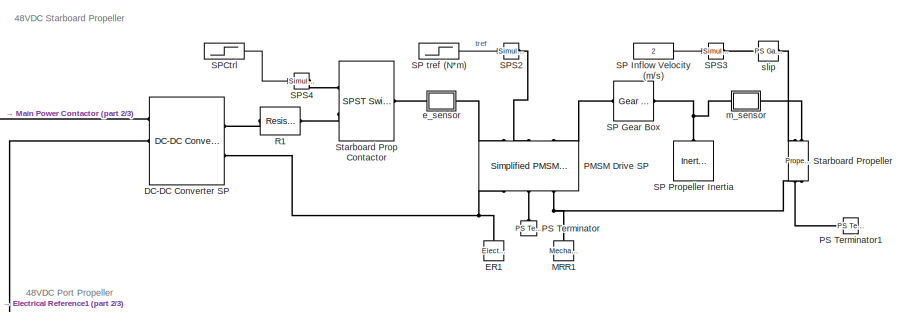
[diagram: root canvas - part 1/3, top right region]
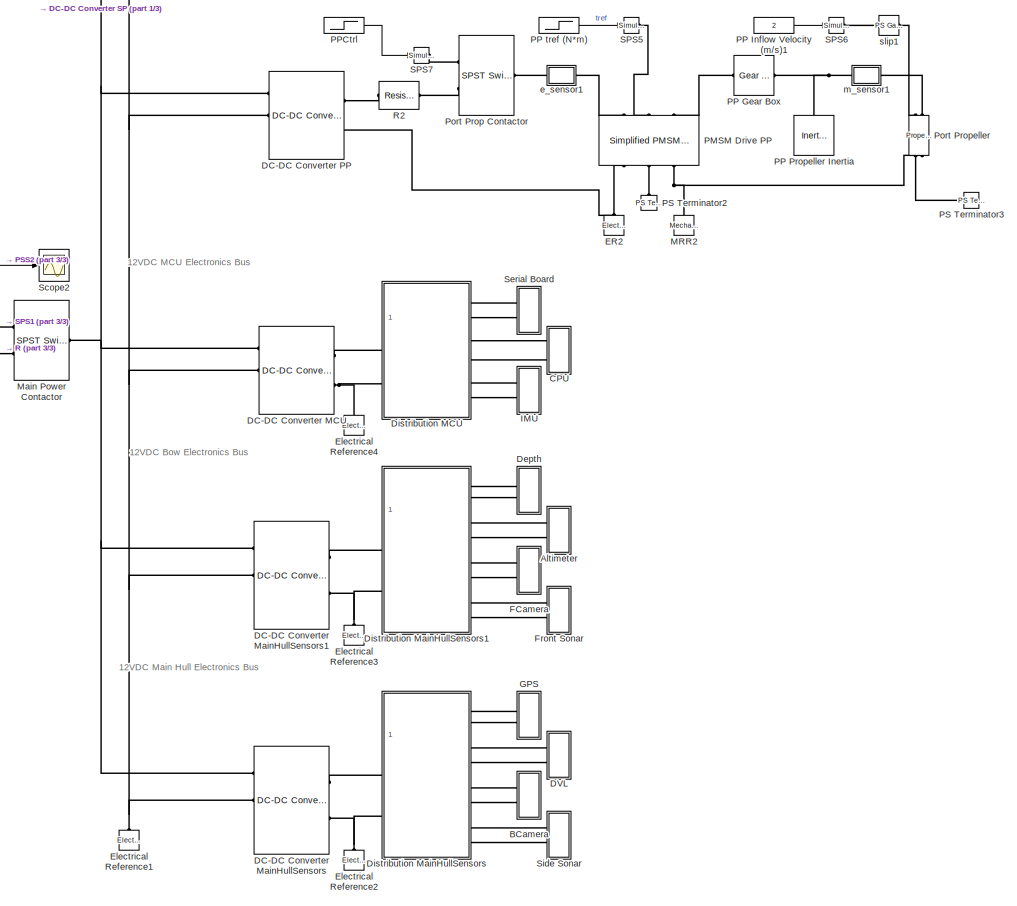
[diagram: root canvas - part 2/3, right side, full height]
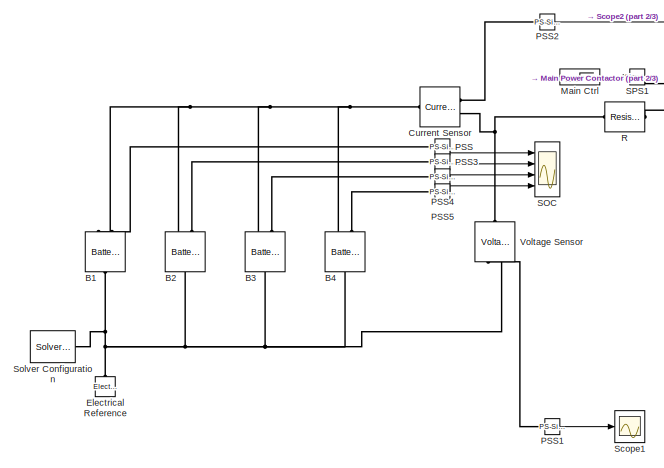
[diagram: root canvas - part 3/3, middle left region]
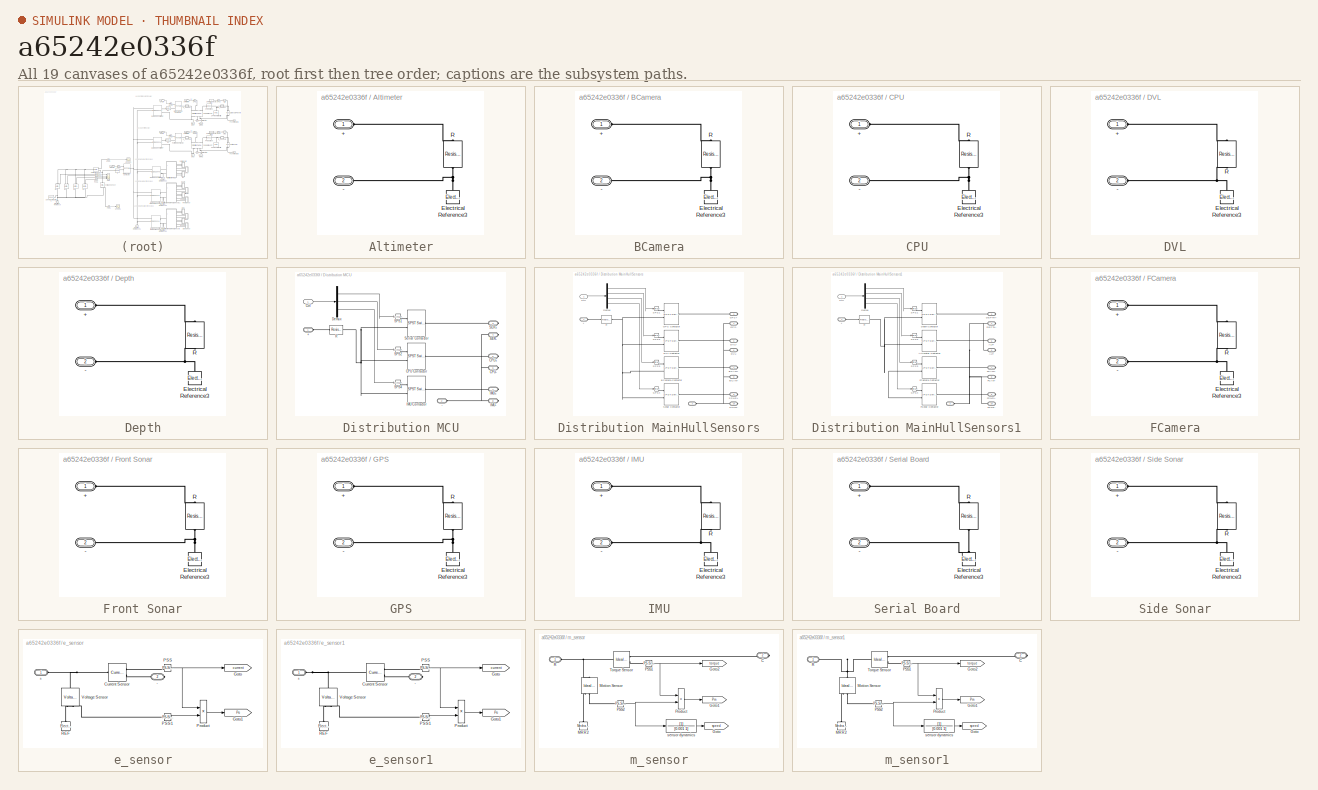
[diagram: thumbnail index - all 19 canvases of the model, root first then tree order]
MODEL slx_a65242e0336f
KIND model
CONFIG AbsTol = 1e-3
CONFIG EnableMultiTasking = off
CONFIG FixedStep = auto
CONFIG MaxStep = auto
CONFIG MinStep = auto
CONFIG RelTol = 1e-3
CONFIG SampleTimeConstraint = Unconstrained
CONFIG Solver = VariableStepAuto
CONFIG SolverName = VariableStepAuto
CONFIG StartTime = 0.0
CONFIG StopTime = 3600
BLOCK [SubSystem] Altimeter
  NameLocation = right
  Ports = [0, 0, 0, 0, 0, 2]
  RequestExecContextInheritance = off
BLOCK [PMIOPort] Altimeter/+
  Side = Left
BLOCK [PMIOPort] Altimeter/-
  Port = 2
  Side = Left
BLOCK [Reference] Altimeter/Electrical Reference3  REF=fl_lib/Electrical/Electrical Elements/Electrical Reference
  NameLocation = right
  Ports = [0, 0, 0, 0, 0, 1]
  SourceBlock = fl_lib/Electrical/Electrical Elements/Electrical Reference
  SourceProductBaseCode = MT,SS
  SourceType = Electrical Reference
BLOCK [Reference] Altimeter/R  REF=ee_lib/Passive/Resistor
  NameLocation = left
  Ports = [0, 0, 0, 0, 0, 1, 1]
  SourceBlock = ee_lib/Passive/Resistor
  SourceProductBaseCode = PS
  SourceType = Resistor
BLOCK [Reference] B1  REF=ee_lib/Sources/Battery
  NameLocation = right
  Ports = [0, 0, 0, 0, 0, 2, 1]
  SourceBlock = ee_lib/Sources/Battery
  SourceProductBaseCode = PS
  SourceType = Battery
BLOCK [Reference] B2  REF=ee_lib/Sources/Battery
  NameLocation = right
  Ports = [0, 0, 0, 0, 0, 2, 1]
  SourceBlock = ee_lib/Sources/Battery
  SourceProductBaseCode = PS
  SourceType = Battery
BLOCK [Reference] B3  REF=ee_lib/Sources/Battery
  NameLocation = right
  Ports = [0, 0, 0, 0, 0, 2, 1]
  SourceBlock = ee_lib/Sources/Battery
  SourceProductBaseCode = PS
  SourceType = Battery
BLOCK [Reference] B4  REF=ee_lib/Sources/Battery
  NameLocation = right
  Ports = [0, 0, 0, 0, 0, 2, 1]
  SourceBlock = ee_lib/Sources/Battery
  SourceProductBaseCode = PS
  SourceType = Battery
BLOCK [SubSystem] BCamera
  NameLocation = right
  Ports = [0, 0, 0, 0, 0, 2]
  RequestExecContextInheritance = off
BLOCK [PMIOPort] BCamera/+
  Side = Left
BLOCK [PMIOPort] BCamera/-
  Port = 2
  Side = Left
BLOCK [Reference] BCamera/Electrical Reference3  REF=fl_lib/Electrical/Electrical Elements/Electrical Reference
  NameLocation = right
  Ports = [0, 0, 0, 0, 0, 1]
  SourceBlock = fl_lib/Electrical/Electrical Elements/Electrical Reference
  SourceProductBaseCode = MT,SS
  SourceType = Electrical Reference
BLOCK [Reference] BCamera/R  REF=ee_lib/Passive/Resistor
  NameLocation = left
  Ports = [0, 0, 0, 0, 0, 1, 1]
  SourceBlock = ee_lib/Passive/Resistor
  SourceProductBaseCode = PS
  SourceType = Resistor
BLOCK [SubSystem] CPU
  NameLocation = right
  Ports = [0, 0, 0, 0, 0, 2]
  RequestExecContextInheritance = off
BLOCK [PMIOPort] CPU/+
  Side = Left
BLOCK [PMIOPort] CPU/-
  Port = 2
  Side = Left
BLOCK [Reference] CPU/Electrical Reference3  REF=fl_lib/Electrical/Electrical Elements/Electrical Reference
  NameLocation = right
  Ports = [0, 0, 0, 0, 0, 1]
  SourceBlock = fl_lib/Electrical/Electrical Elements/Electrical Reference
  SourceProductBaseCode = MT,SS
  SourceType = Electrical Reference
BLOCK [Reference] CPU/R  REF=ee_lib/Passive/Resistor
  NameLocation = left
  Ports = [0, 0, 0, 0, 0, 1, 1]
  SourceBlock = ee_lib/Passive/Resistor
  SourceProductBaseCode = PS
  SourceType = Resistor
BLOCK [Reference] Current Sensor  REF=fl_lib/Electrical/Electrical Sensors/Current Sensor
  Ports = [0, 0, 0, 0, 0, 1, 2]
  SourceBlock = fl_lib/Electrical/Electrical Sensors/Current Sensor
  SourceProductBaseCode = SS
  SourceType = Current Sensor
BLOCK [Reference] DC-DC Converter MCU  REF=ee_lib/Semiconductors &
Converters/Converters/DC-DC Converter
  Ports = [0, 0, 0, 0, 0, 3, 2]
  SourceBlock = ee_lib/Semiconductors &\nConverters/Converters/DC-DC Converter
  SourceProductBaseCode = PS
  SourceType = DC-DC Converter
BLOCK [Reference] DC-DC Converter MainHullSensors  REF=ee_lib/Semiconductors &
Converters/Converters/DC-DC Converter
  Ports = [0, 0, 0, 0, 0, 3, 2]
  SourceBlock = ee_lib/Semiconductors &\nConverters/Converters/DC-DC Converter
  SourceProductBaseCode = PS
  SourceType = DC-DC Converter
BLOCK [Reference] DC-DC Converter MainHullSensors1  REF=ee_lib/Semiconductors &
Converters/Converters/DC-DC Converter
  Ports = [0, 0, 0, 0, 0, 3, 2]
  SourceBlock = ee_lib/Semiconductors &\nConverters/Converters/DC-DC Converter
  SourceProductBaseCode = PS
  SourceType = DC-DC Converter
BLOCK [Reference] DC-DC Converter PP  REF=ee_lib/Semiconductors &
Converters/Converters/DC-DC Converter
  Ports = [0, 0, 0, 0, 0, 3, 2]
  SourceBlock = ee_lib/Semiconductors &\nConverters/Converters/DC-DC Converter
  SourceProductBaseCode = PS
  SourceType = DC-DC Converter
BLOCK [Reference] DC-DC Converter SP  REF=ee_lib/Semiconductors &
Converters/Converters/DC-DC Converter
  Ports = [0, 0, 0, 0, 0, 3, 2]
  SourceBlock = ee_lib/Semiconductors &\nConverters/Converters/DC-DC Converter
  SourceProductBaseCode = PS
  SourceType = DC-DC Converter
BLOCK [SubSystem] DVL
  NameLocation = right
  Ports = [0, 0, 0, 0, 0, 2]
  RequestExecContextInheritance = off
BLOCK [PMIOPort] DVL/+
  Side = Left
BLOCK [PMIOPort] DVL/-
  Port = 2
  Side = Left
BLOCK [Reference] DVL/Electrical Reference3  REF=fl_lib/Electrical/Electrical Elements/Electrical Reference
  NameLocation = right
  Ports = [0, 0, 0, 0, 0, 1]
  SourceBlock = fl_lib/Electrical/Electrical Elements/Electrical Reference
  SourceProductBaseCode = MT,SS
  SourceType = Electrical Reference
BLOCK [Reference] DVL/R  REF=ee_lib/Passive/Resistor
  NameLocation = left
  Ports = [0, 0, 0, 0, 0, 1, 1]
  SourceBlock = ee_lib/Passive/Resistor
  SourceProductBaseCode = PS
  SourceType = Resistor
BLOCK [SubSystem] Depth
  NameLocation = right
  Ports = [0, 0, 0, 0, 0, 2]
  RequestExecContextInheritance = off
BLOCK [PMIOPort] Depth/+
  Side = Left
BLOCK [PMIOPort] Depth/-
  Port = 2
  Side = Left
BLOCK [Reference] Depth/Electrical Reference3  REF=fl_lib/Electrical/Electrical Elements/Electrical Reference
  NameLocation = right
  Ports = [0, 0, 0, 0, 0, 1]
  SourceBlock = fl_lib/Electrical/Electrical Elements/Electrical Reference
  SourceProductBaseCode = MT,SS
  SourceType = Electrical Reference
BLOCK [Reference] Depth/R  REF=ee_lib/Passive/Resistor
  NameLocation = left
  Ports = [0, 0, 0, 0, 0, 1, 1]
  SourceBlock = ee_lib/Passive/Resistor
  SourceProductBaseCode = PS
  SourceType = Resistor
BLOCK [SubSystem] Distribution MCU
  Ports = [1, 0, 0, 0, 0, 2, 6]
  RequestExecContextInheritance = off
BLOCK [PMIOPort] Distribution MCU/+
  Side = Left
BLOCK [PMIOPort] Distribution MCU/-
  Port = 2
  Side = Left
BLOCK [Reference] Distribution MCU/CPU Contactor  REF=ee_lib/Switches & Breakers/SPST Switch
  Ports = [0, 0, 0, 0, 0, 2, 1]
  SourceBlock = ee_lib/Switches & Breakers/SPST Switch
  SourceProductBaseCode = PS
  SourceType = SPST Switch
BLOCK [PMIOPort] Distribution MCU/CPU+
  Port = 5
  Side = Right
BLOCK [PMIOPort] Distribution MCU/CPU-
  Port = 6
  Side = Right
BLOCK [Inport] Distribution MCU/Ctrl
BLOCK [Demux] Distribution MCU/Demux
  Outputs = 3
  Ports = [1, 3]
BLOCK [Reference] Distribution MCU/IMU Contactor  REF=ee_lib/Switches & Breakers/SPST Switch
  Ports = [0, 0, 0, 0, 0, 2, 1]
  SourceBlock = ee_lib/Switches & Breakers/SPST Switch
  SourceProductBaseCode = PS
  SourceType = SPST Switch
BLOCK [PMIOPort] Distribution MCU/IMU+
  Port = 7
  Side = Right
BLOCK [PMIOPort] Distribution MCU/IMU-
  Port = 8
  Side = Right
BLOCK [Reference] Distribution MCU/R  REF=ee_lib/Passive/Resistor
  Ports = [0, 0, 0, 0, 0, 1, 1]
  SourceBlock = ee_lib/Passive/Resistor
  SourceProductBaseCode = PS
  SourceType = Resistor
BLOCK [PMIOPort] Distribution MCU/SER+
  Port = 3
  Side = Right
BLOCK [PMIOPort] Distribution MCU/SER-
  Port = 4
  Side = Right
BLOCK [Reference] Distribution MCU/SPS1  REF=nesl_utility/Simulink-PS
Converter
  Ports = [1, 0, 0, 0, 0, 0, 1]
  SourceBlock = nesl_utility/Simulink-PS\nConverter
  SourceProductBaseCode = SS
  SourceType = Simulink-PS\nConverter
BLOCK [Reference] Distribution MCU/SPS2  REF=nesl_utility/Simulink-PS
Converter
  Ports = [1, 0, 0, 0, 0, 0, 1]
  SourceBlock = nesl_utility/Simulink-PS\nConverter
  SourceProductBaseCode = SS
  SourceType = Simulink-PS\nConverter
BLOCK [Reference] Distribution MCU/SPS4  REF=nesl_utility/Simulink-PS
Converter
  Ports = [1, 0, 0, 0, 0, 0, 1]
  SourceBlock = nesl_utility/Simulink-PS\nConverter
  SourceProductBaseCode = SS
  SourceType = Simulink-PS\nConverter
BLOCK [Reference] Distribution MCU/Serial Contactor  REF=ee_lib/Switches & Breakers/SPST Switch
  Ports = [0, 0, 0, 0, 0, 2, 1]
  SourceBlock = ee_lib/Switches & Breakers/SPST Switch
  SourceProductBaseCode = PS
  SourceType = SPST Switch
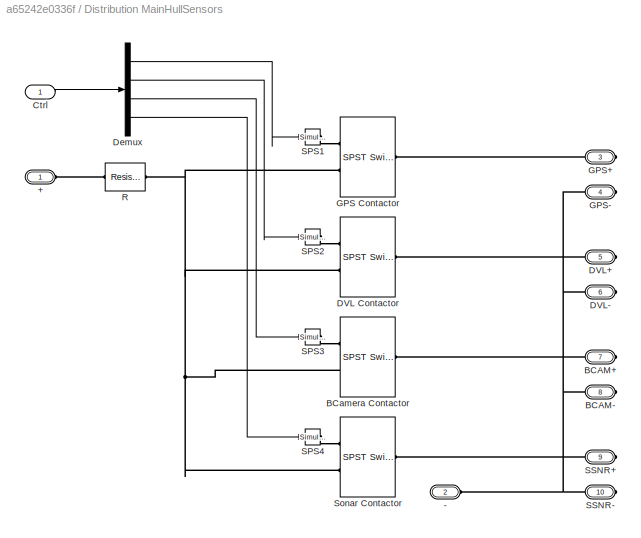
BLOCK [SubSystem] Distribution MainHullSensors
  Ports = [1, 0, 0, 0, 0, 2, 8]
  RequestExecContextInheritance = off
BLOCK [PMIOPort] Distribution MainHullSensors/+
  Side = Left
BLOCK [PMIOPort] Distribution MainHullSensors/-
  Port = 2
  Side = Left
BLOCK [PMIOPort] Distribution MainHullSensors/BCAM+
  Port = 7
  Side = Right
BLOCK [PMIOPort] Distribution MainHullSensors/BCAM-
  Port = 8
  Side = Right
BLOCK [Reference] Distribution MainHullSensors/BCamera Contactor  REF=ee_lib/Switches & Breakers/SPST Switch
  Ports = [0, 0, 0, 0, 0, 2, 1]
  SourceBlock = ee_lib/Switches & Breakers/SPST Switch
  SourceProductBaseCode = PS
  SourceType = SPST Switch
BLOCK [Inport] Distribution MainHullSensors/Ctrl
BLOCK [Reference] Distribution MainHullSensors/DVL Contactor  REF=ee_lib/Switches & Breakers/SPST Switch
  Ports = [0, 0, 0, 0, 0, 2, 1]
  SourceBlock = ee_lib/Switches & Breakers/SPST Switch
  SourceProductBaseCode = PS
  SourceType = SPST Switch
BLOCK [PMIOPort] Distribution MainHullSensors/DVL+
  Port = 5
  Side = Right
BLOCK [PMIOPort] Distribution MainHullSensors/DVL-
  Port = 6
  Side = Right
BLOCK [Demux] Distribution MainHullSensors/Demux
  Ports = [1, 4]
BLOCK [Reference] Distribution MainHullSensors/GPS Contactor  REF=ee_lib/Switches & Breakers/SPST Switch
  Ports = [0, 0, 0, 0, 0, 2, 1]
  SourceBlock = ee_lib/Switches & Breakers/SPST Switch
  SourceProductBaseCode = PS
  SourceType = SPST Switch
BLOCK [PMIOPort] Distribution MainHullSensors/GPS+
  Port = 3
  Side = Right
BLOCK [PMIOPort] Distribution MainHullSensors/GPS-
  Port = 4
  Side = Right
BLOCK [Reference] Distribution MainHullSensors/R  REF=ee_lib/Passive/Resistor
  Ports = [0, 0, 0, 0, 0, 1, 1]
  SourceBlock = ee_lib/Passive/Resistor
  SourceProductBaseCode = PS
  SourceType = Resistor
BLOCK [Reference] Distribution MainHullSensors/SPS1  REF=nesl_utility/Simulink-PS
Converter
  Ports = [1, 0, 0, 0, 0, 0, 1]
  SourceBlock = nesl_utility/Simulink-PS\nConverter
  SourceProductBaseCode = SS
  SourceType = Simulink-PS\nConverter
BLOCK [Reference] Distribution MainHullSensors/SPS2  REF=nesl_utility/Simulink-PS
Converter
  Ports = [1, 0, 0, 0, 0, 0, 1]
  SourceBlock = nesl_utility/Simulink-PS\nConverter
  SourceProductBaseCode = SS
  SourceType = Simulink-PS\nConverter
BLOCK [Reference] Distribution MainHullSensors/SPS3  REF=nesl_utility/Simulink-PS
Converter
  Ports = [1, 0, 0, 0, 0, 0, 1]
  SourceBlock = nesl_utility/Simulink-PS\nConverter
  SourceProductBaseCode = SS
  SourceType = Simulink-PS\nConverter
BLOCK [Reference] Distribution MainHullSensors/SPS4  REF=nesl_utility/Simulink-PS
Converter
  Ports = [1, 0, 0, 0, 0, 0, 1]
  SourceBlock = nesl_utility/Simulink-PS\nConverter
  SourceProductBaseCode = SS
  SourceType = Simulink-PS\nConverter
BLOCK [PMIOPort] Distribution MainHullSensors/SSNR+
  Port = 9
  Side = Right
BLOCK [PMIOPort] Distribution MainHullSensors/SSNR-
  Port = 10
  Side = Right
BLOCK [Reference] Distribution MainHullSensors/Sonar Contactor  REF=ee_lib/Switches & Breakers/SPST Switch
  Ports = [0, 0, 0, 0, 0, 2, 1]
  SourceBlock = ee_lib/Switches & Breakers/SPST Switch
  SourceProductBaseCode = PS
  SourceType = SPST Switch
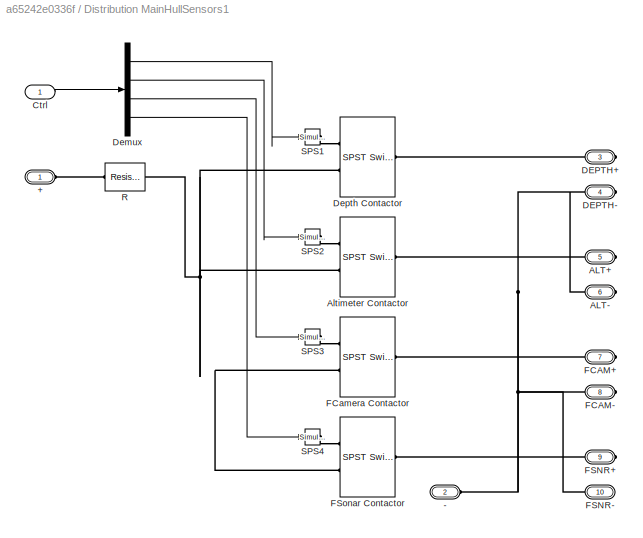
BLOCK [SubSystem] Distribution MainHullSensors1
  Ports = [1, 0, 0, 0, 0, 2, 8]
  RequestExecContextInheritance = off
BLOCK [PMIOPort] Distribution MainHullSensors1/+
  Side = Left
BLOCK [PMIOPort] Distribution MainHullSensors1/-
  Port = 2
  Side = Left
BLOCK [PMIOPort] Distribution MainHullSensors1/ALT+
  Port = 5
  Side = Right
BLOCK [PMIOPort] Distribution MainHullSensors1/ALT-
  Port = 6
  Side = Right
BLOCK [Reference] Distribution MainHullSensors1/Altimeter Contactor  REF=ee_lib/Switches & Breakers/SPST Switch
  Ports = [0, 0, 0, 0, 0, 2, 1]
  SourceBlock = ee_lib/Switches & Breakers/SPST Switch
  SourceProductBaseCode = PS
  SourceType = SPST Switch
BLOCK [Inport] Distribution MainHullSensors1/Ctrl
BLOCK [PMIOPort] Distribution MainHullSensors1/DEPTH+
  Port = 3
  Side = Right
BLOCK [PMIOPort] Distribution MainHullSensors1/DEPTH-
  Port = 4
  Side = Right
BLOCK [Demux] Distribution MainHullSensors1/Demux
  Ports = [1, 4]
BLOCK [Reference] Distribution MainHullSensors1/Depth Contactor  REF=ee_lib/Switches & Breakers/SPST Switch
  Ports = [0, 0, 0, 0, 0, 2, 1]
  SourceBlock = ee_lib/Switches & Breakers/SPST Switch
  SourceProductBaseCode = PS
  SourceType = SPST Switch
BLOCK [PMIOPort] Distribution MainHullSensors1/FCAM+
  Port = 7
  Side = Right
BLOCK [PMIOPort] Distribution MainHullSensors1/FCAM-
  Port = 8
  Side = Right
BLOCK [Reference] Distribution MainHullSensors1/FCamera Contactor  REF=ee_lib/Switches & Breakers/SPST Switch
  Ports = [0, 0, 0, 0, 0, 2, 1]
  SourceBlock = ee_lib/Switches & Breakers/SPST Switch
  SourceProductBaseCode = PS
  SourceType = SPST Switch
BLOCK [PMIOPort] Distribution MainHullSensors1/FSNR+
  Port = 9
  Side = Right
BLOCK [PMIOPort] Distribution MainHullSensors1/FSNR-
  Port = 10
  Side = Right
BLOCK [Reference] Distribution MainHullSensors1/FSonar Contactor  REF=ee_lib/Switches & Breakers/SPST Switch
  Ports = [0, 0, 0, 0, 0, 2, 1]
  SourceBlock = ee_lib/Switches & Breakers/SPST Switch
  SourceProductBaseCode = PS
  SourceType = SPST Switch
BLOCK [Reference] Distribution MainHullSensors1/R  REF=ee_lib/Passive/Resistor
  Ports = [0, 0, 0, 0, 0, 1, 1]
  SourceBlock = ee_lib/Passive/Resistor
  SourceProductBaseCode = PS
  SourceType = Resistor
BLOCK [Reference] Distribution MainHullSensors1/SPS1  REF=nesl_utility/Simulink-PS
Converter
  Ports = [1, 0, 0, 0, 0, 0, 1]
  SourceBlock = nesl_utility/Simulink-PS\nConverter
  SourceProductBaseCode = SS
  SourceType = Simulink-PS\nConverter
BLOCK [Reference] Distribution MainHullSensors1/SPS2  REF=nesl_utility/Simulink-PS
Converter
  Ports = [1, 0, 0, 0, 0, 0, 1]
  SourceBlock = nesl_utility/Simulink-PS\nConverter
  SourceProductBaseCode = SS
  SourceType = Simulink-PS\nConverter
BLOCK [Reference] Distribution MainHullSensors1/SPS3  REF=nesl_utility/Simulink-PS
Converter
  Ports = [1, 0, 0, 0, 0, 0, 1]
  SourceBlock = nesl_utility/Simulink-PS\nConverter
  SourceProductBaseCode = SS
  SourceType = Simulink-PS\nConverter
BLOCK [Reference] Distribution MainHullSensors1/SPS4  REF=nesl_utility/Simulink-PS
Converter
  Ports = [1, 0, 0, 0, 0, 0, 1]
  SourceBlock = nesl_utility/Simulink-PS\nConverter
  SourceProductBaseCode = SS
  SourceType = Simulink-PS\nConverter
BLOCK [Reference] ER1  REF=fl_lib/Electrical/Electrical Elements/Electrical Reference
  NameLocation = right
  Ports = [0, 0, 0, 0, 0, 1]
  SourceBlock = fl_lib/Electrical/Electrical Elements/Electrical Reference
  SourceProductName = Foundation Library
  SourceType = Electrical Reference
BLOCK [Reference] ER2  REF=fl_lib/Electrical/Electrical Elements/Electrical Reference
  NameLocation = right
  Ports = [0, 0, 0, 0, 0, 1]
  SourceBlock = fl_lib/Electrical/Electrical Elements/Electrical Reference
  SourceProductName = Foundation Library
  SourceType = Electrical Reference
BLOCK [Reference] Electrical Reference  REF=fl_lib/Electrical/Electrical Elements/Electrical Reference
  NameLocation = right
  Ports = [0, 0, 0, 0, 0, 1]
  SourceBlock = fl_lib/Electrical/Electrical Elements/Electrical Reference
  SourceProductBaseCode = MT,SS
  SourceType = Electrical Reference
BLOCK [Reference] Electrical Reference1  REF=fl_lib/Electrical/Electrical Elements/Electrical Reference
  NameLocation = right
  Ports = [0, 0, 0, 0, 0, 1]
  SourceBlock = fl_lib/Electrical/Electrical Elements/Electrical Reference
  SourceProductBaseCode = MT,SS
  SourceType = Electrical Reference
BLOCK [Reference] Electrical Reference2  REF=fl_lib/Electrical/Electrical Elements/Electrical Reference
  NameLocation = right
  Ports = [0, 0, 0, 0, 0, 1]
  SourceBlock = fl_lib/Electrical/Electrical Elements/Electrical Reference
  SourceProductBaseCode = MT,SS
  SourceType = Electrical Reference
BLOCK [Reference] Electrical Reference3  REF=fl_lib/Electrical/Electrical Elements/Electrical Reference
  NameLocation = right
  Ports = [0, 0, 0, 0, 0, 1]
  SourceBlock = fl_lib/Electrical/Electrical Elements/Electrical Reference
  SourceProductBaseCode = MT,SS
  SourceType = Electrical Reference
BLOCK [Reference] Electrical Reference4  REF=fl_lib/Electrical/Electrical Elements/Electrical Reference
  NameLocation = right
  Ports = [0, 0, 0, 0, 0, 1]
  SourceBlock = fl_lib/Electrical/Electrical Elements/Electrical Reference
  SourceProductBaseCode = MT,SS
  SourceType = Electrical Reference
BLOCK [SubSystem] FCamera
  NameLocation = right
  Ports = [0, 0, 0, 0, 0, 2]
  RequestExecContextInheritance = off
BLOCK [PMIOPort] FCamera/+
  Side = Left
BLOCK [PMIOPort] FCamera/-
  Port = 2
  Side = Left
BLOCK [Reference] FCamera/Electrical Reference3  REF=fl_lib/Electrical/Electrical Elements/Electrical Reference
  NameLocation = right
  Ports = [0, 0, 0, 0, 0, 1]
  SourceBlock = fl_lib/Electrical/Electrical Elements/Electrical Reference
  SourceProductBaseCode = MT,SS
  SourceType = Electrical Reference
BLOCK [Reference] FCamera/R  REF=ee_lib/Passive/Resistor
  NameLocation = left
  Ports = [0, 0, 0, 0, 0, 1, 1]
  SourceBlock = ee_lib/Passive/Resistor
  SourceProductBaseCode = PS
  SourceType = Resistor
BLOCK [SubSystem] Front Sonar
  NameLocation = right
  Ports = [0, 0, 0, 0, 0, 2]
  RequestExecContextInheritance = off
BLOCK [PMIOPort] Front Sonar/+
  Side = Left
BLOCK [PMIOPort] Front Sonar/-
  Port = 2
  Side = Left
BLOCK [Reference] Front Sonar/Electrical Reference3  REF=fl_lib/Electrical/Electrical Elements/Electrical Reference
  NameLocation = right
  Ports = [0, 0, 0, 0, 0, 1]
  SourceBlock = fl_lib/Electrical/Electrical Elements/Electrical Reference
  SourceProductBaseCode = MT,SS
  SourceType = Electrical Reference
BLOCK [Reference] Front Sonar/R  REF=ee_lib/Passive/Resistor
  NameLocation = left
  Ports = [0, 0, 0, 0, 0, 1, 1]
  SourceBlock = ee_lib/Passive/Resistor
  SourceProductBaseCode = PS
  SourceType = Resistor
BLOCK [SubSystem] GPS
  NameLocation = right
  Ports = [0, 0, 0, 0, 0, 2]
  RequestExecContextInheritance = off
BLOCK [PMIOPort] GPS/+
  Side = Left
BLOCK [PMIOPort] GPS/-
  Port = 2
  Side = Left
BLOCK [Reference] GPS/Electrical Reference3  REF=fl_lib/Electrical/Electrical Elements/Electrical Reference
  NameLocation = right
  Ports = [0, 0, 0, 0, 0, 1]
  SourceBlock = fl_lib/Electrical/Electrical Elements/Electrical Reference
  SourceProductBaseCode = MT,SS
  SourceType = Electrical Reference
BLOCK [Reference] GPS/R  REF=ee_lib/Passive/Resistor
  NameLocation = left
  Ports = [0, 0, 0, 0, 0, 1, 1]
  SourceBlock = ee_lib/Passive/Resistor
  SourceProductBaseCode = PS
  SourceType = Resistor
BLOCK [SubSystem] IMU
  NameLocation = right
  Ports = [0, 0, 0, 0, 0, 2]
  RequestExecContextInheritance = off
BLOCK [PMIOPort] IMU/+
  Side = Left
BLOCK [PMIOPort] IMU/-
  Port = 2
  Side = Left
BLOCK [Reference] IMU/Electrical Reference3  REF=fl_lib/Electrical/Electrical Elements/Electrical Reference
  NameLocation = right
  Ports = [0, 0, 0, 0, 0, 1]
  SourceBlock = fl_lib/Electrical/Electrical Elements/Electrical Reference
  SourceProductBaseCode = MT,SS
  SourceType = Electrical Reference
BLOCK [Reference] IMU/R  REF=ee_lib/Passive/Resistor
  NameLocation = left
  Ports = [0, 0, 0, 0, 0, 1, 1]
  SourceBlock = ee_lib/Passive/Resistor
  SourceProductBaseCode = PS
  SourceType = Resistor
BLOCK [Reference] MRR1  REF=fl_lib/Mechanical/Rotational Elements/Mechanical
Rotational Reference
  NameLocation = right
  Ports = [0, 0, 0, 0, 0, 1]
  SourceBlock = fl_lib/Mechanical/Rotational Elements/Mechanical\nRotational Reference
  SourceProductBaseCode = SS
  SourceType = Mechanical\nRotational Reference
BLOCK [Reference] MRR2  REF=fl_lib/Mechanical/Rotational Elements/Mechanical
Rotational Reference
  NameLocation = right
  Ports = [0, 0, 0, 0, 0, 1]
  SourceBlock = fl_lib/Mechanical/Rotational Elements/Mechanical\nRotational Reference
  SourceProductBaseCode = SS
  SourceType = Mechanical\nRotational Reference
BLOCK [Step] Main Ctrl
  SampleTime = 0
  Time = 100
BLOCK [Reference] Main Power Contactor  REF=ee_lib/Switches & Breakers/SPST Switch
  Ports = [0, 0, 0, 0, 0, 2, 1]
  SourceBlock = ee_lib/Switches & Breakers/SPST Switch
  SourceProductBaseCode = PS
  SourceType = SPST Switch
BLOCK [Reference] PMSM Drive PP  REF=ee_lib/Electromechanical/Permanent Magnet/Simplified PMSM
Drive
  NameLocation = right
  Ports = [0, 0, 0, 0, 0, 3, 3]
  SourceBlock = ee_lib/Electromechanical/Permanent Magnet/Simplified PMSM\nDrive
  SourceProductBaseCode = PS
  SourceType = Simplified PMSM\nDrive
BLOCK [Reference] PMSM Drive SP  REF=ee_lib/Electromechanical/Permanent Magnet/Simplified PMSM
Drive
  NameLocation = right
  Ports = [0, 0, 0, 0, 0, 3, 3]
  SourceBlock = ee_lib/Electromechanical/Permanent Magnet/Simplified PMSM\nDrive
  SourceProductBaseCode = PS
  SourceType = Simplified PMSM\nDrive
BLOCK [Reference] PP Gear Box  REF=fl_lib/Mechanical/Mechanisms/Gear Box
  Ports = [0, 0, 0, 0, 0, 1, 1]
  SourceBlock = fl_lib/Mechanical/Mechanisms/Gear Box
  SourceProductBaseCode = SS
  SourceType = Gear Box
BLOCK [Constant] PP Inflow Velocity (m//s)1
  Value = 2
BLOCK [Reference] PP Propeller Inertia  REF=fl_lib/Mechanical/Rotational Elements/Inertia
  NameLocation = right
  Ports = [0, 0, 0, 0, 0, 1]
  SourceBlock = fl_lib/Mechanical/Rotational Elements/Inertia
  SourceProductBaseCode = SS
  SourceType = Inertia
BLOCK [Step] PP tref (N*m)
  After = 0.5
  Before = 0.25
  SampleTime = 0
  Time = 0.05
BLOCK [Step] PPCtrl
  SampleTime = 0
  Time = 100
BLOCK [Reference] PS Terminator  REF=fl_lib/Physical Signals/Sinks/PS Terminator
  NameLocation = left
  Ports = [0, 0, 0, 0, 0, 1]
  SourceBlock = fl_lib/Physical Signals/Sinks/PS Terminator
  SourceProductBaseCode = SS
  SourceType = PS Terminator
BLOCK [Reference] PS Terminator1  REF=fl_lib/Physical Signals/Sinks/PS Terminator
  Ports = [0, 0, 0, 0, 0, 1]
  SourceBlock = fl_lib/Physical Signals/Sinks/PS Terminator
  SourceProductBaseCode = SS
  SourceType = PS Terminator
BLOCK [Reference] PS Terminator2  REF=fl_lib/Physical Signals/Sinks/PS Terminator
  NameLocation = left
  Ports = [0, 0, 0, 0, 0, 1]
  SourceBlock = fl_lib/Physical Signals/Sinks/PS Terminator
  SourceProductBaseCode = SS
  SourceType = PS Terminator
BLOCK [Reference] PS Terminator3  REF=fl_lib/Physical Signals/Sinks/PS Terminator
  Ports = [0, 0, 0, 0, 0, 1]
  SourceBlock = fl_lib/Physical Signals/Sinks/PS Terminator
  SourceProductBaseCode = SS
  SourceType = PS Terminator
BLOCK [Reference] PSS  REF=nesl_utility/PS-Simulink
Converter
  Ports = [0, 1, 0, 0, 0, 1]
  SourceBlock = nesl_utility/PS-Simulink\nConverter
  SourceProductBaseCode = SS
  SourceType = PS-Simulink\nConverter
BLOCK [Reference] PSS1  REF=nesl_utility/PS-Simulink
Converter
  Ports = [0, 1, 0, 0, 0, 1]
  SourceBlock = nesl_utility/PS-Simulink\nConverter
  SourceProductBaseCode = SS
  SourceType = PS-Simulink\nConverter
BLOCK [Reference] PSS2  REF=nesl_utility/PS-Simulink
Converter
  Ports = [0, 1, 0, 0, 0, 1]
  SourceBlock = nesl_utility/PS-Simulink\nConverter
  SourceProductBaseCode = SS
  SourceType = PS-Simulink\nConverter
BLOCK [Reference] PSS3  REF=nesl_utility/PS-Simulink
Converter
  Ports = [0, 1, 0, 0, 0, 1]
  SourceBlock = nesl_utility/PS-Simulink\nConverter
  SourceProductBaseCode = SS
  SourceType = PS-Simulink\nConverter
BLOCK [Reference] PSS4  REF=nesl_utility/PS-Simulink
Converter
  Ports = [0, 1, 0, 0, 0, 1]
  SourceBlock = nesl_utility/PS-Simulink\nConverter
  SourceProductBaseCode = SS
  SourceType = PS-Simulink\nConverter
BLOCK [Reference] PSS5  REF=nesl_utility/PS-Simulink
Converter
  Ports = [0, 1, 0, 0, 0, 1]
  SourceBlock = nesl_utility/PS-Simulink\nConverter
  SourceProductBaseCode = SS
  SourceType = PS-Simulink\nConverter
BLOCK [Reference] Port Prop Contactor  REF=ee_lib/Switches & Breakers/SPST Switch
  Ports = [0, 0, 0, 0, 0, 2, 1]
  SourceBlock = ee_lib/Switches & Breakers/SPST Switch
  SourceProductBaseCode = PS
  SourceType = SPST Switch
BLOCK [Reference] Port Propeller  REF=AUVPropulsionSSC_lib/Propeller
  NameLocation = right
  Ports = [0, 0, 0, 0, 0, 2, 2]
  SourceBlock = AUVPropulsionSSC_lib/Propeller
  SourceType = Propeller
BLOCK [Reference] R  REF=ee_lib/Passive/Resistor
  Ports = [0, 0, 0, 0, 0, 1, 1]
  SourceBlock = ee_lib/Passive/Resistor
  SourceProductBaseCode = PS
  SourceType = Resistor
BLOCK [Reference] R1  REF=ee_lib/Passive/Resistor
  Ports = [0, 0, 0, 0, 0, 1, 1]
  SourceBlock = ee_lib/Passive/Resistor
  SourceProductBaseCode = PS
  SourceType = Resistor
BLOCK [Reference] R2  REF=ee_lib/Passive/Resistor
  Ports = [0, 0, 0, 0, 0, 1, 1]
  SourceBlock = ee_lib/Passive/Resistor
  SourceProductBaseCode = PS
  SourceType = Resistor
BLOCK [Scope] SOC
  Floating = off
  NumInputPorts = 4
  Ports = [4]
  ScopeSpecificationString = Simulink.scopes.TimeScopeBlockCfg('CurrentConfiguration', extmgr.ConfigurationSet(extmgr.Configuration('Core','General UI',true),extmgr.Configuration('Core','Source UI',true),extmgr.Configuration('Sources','WiredSimulink',true),extmgr.Configuration('Visuals','Time Domain',true,'SerializedDisplays',{struct('MinYLimReal','-0.30114','MaxYLimReal','9.20013','YLabelReal','','MinYLimMag','0.00000','MaxY...<+1350ch>
BLOCK [Reference] SP Gear Box  REF=fl_lib/Mechanical/Mechanisms/Gear Box
  Ports = [0, 0, 0, 0, 0, 1, 1]
  SourceBlock = fl_lib/Mechanical/Mechanisms/Gear Box
  SourceProductBaseCode = SS
  SourceType = Gear Box
BLOCK [Constant] SP Inflow Velocity (m//s)
  Value = 2
BLOCK [Reference] SP Propeller Inertia  REF=fl_lib/Mechanical/Rotational Elements/Inertia
  NameLocation = right
  Ports = [0, 0, 0, 0, 0, 1]
  SourceBlock = fl_lib/Mechanical/Rotational Elements/Inertia
  SourceProductBaseCode = SS
  SourceType = Inertia
BLOCK [Step] SP tref (N*m)
  After = 0.5
  Before = 0.25
  SampleTime = 0
  Time = 0.05
BLOCK [Step] SPCtrl
  SampleTime = 0
  Time = 100
BLOCK [Reference] SPS1  REF=nesl_utility/Simulink-PS
Converter
  Ports = [1, 0, 0, 0, 0, 0, 1]
  SourceBlock = nesl_utility/Simulink-PS\nConverter
  SourceProductBaseCode = MT,SS
  SourceType = Simulink-PS\nConverter
BLOCK [Reference] SPS2  REF=nesl_utility/Simulink-PS
Converter
  Ports = [1, 0, 0, 0, 0, 0, 1]
  SourceBlock = nesl_utility/Simulink-PS\nConverter
  SourceProductBaseCode = SS
  SourceType = Simulink-PS\nConverter
BLOCK [Reference] SPS3  REF=nesl_utility/Simulink-PS
Converter
  Ports = [1, 0, 0, 0, 0, 0, 1]
  SourceBlock = nesl_utility/Simulink-PS\nConverter
  SourceProductBaseCode = SS
  SourceType = Simulink-PS\nConverter
BLOCK [Reference] SPS4  REF=nesl_utility/Simulink-PS
Converter
  Ports = [1, 0, 0, 0, 0, 0, 1]
  SourceBlock = nesl_utility/Simulink-PS\nConverter
  SourceProductBaseCode = MT,SS
  SourceType = Simulink-PS\nConverter
BLOCK [Reference] SPS5  REF=nesl_utility/Simulink-PS
Converter
  Ports = [1, 0, 0, 0, 0, 0, 1]
  SourceBlock = nesl_utility/Simulink-PS\nConverter
  SourceProductBaseCode = SS
  SourceType = Simulink-PS\nConverter
BLOCK [Reference] SPS6  REF=nesl_utility/Simulink-PS
Converter
  Ports = [1, 0, 0, 0, 0, 0, 1]
  SourceBlock = nesl_utility/Simulink-PS\nConverter
  SourceProductBaseCode = SS
  SourceType = Simulink-PS\nConverter
BLOCK [Reference] SPS7  REF=nesl_utility/Simulink-PS
Converter
  Ports = [1, 0, 0, 0, 0, 0, 1]
  SourceBlock = nesl_utility/Simulink-PS\nConverter
  SourceProductBaseCode = MT,SS
  SourceType = Simulink-PS\nConverter
BLOCK [Scope] Scope1
  Floating = off
  NumInputPorts = 1
  Ports = [1]
  ScopeSpecificationString = Simulink.scopes.TimeScopeBlockCfg('CurrentConfiguration', extmgr.ConfigurationSet(extmgr.Configuration('Core','General UI',true),extmgr.Configuration('Core','Source UI',true),extmgr.Configuration('Sources','WiredSimulink',true,'DataLoggingVariableName','ScopeData1'),extmgr.Configuration('Visuals','Time Domain',true,'SerializedDisplays',{struct('MinYLimReal','16.6558','MaxYLimReal','50.81602','YLab...<+1393ch>
BLOCK [Scope] Scope2
  Floating = off
  NumInputPorts = 1
  Ports = [1]
  ScopeSpecificationString = Simulink.scopes.TimeScopeBlockCfg('CurrentConfiguration', extmgr.ConfigurationSet(extmgr.Configuration('Core','General UI',true),extmgr.Configuration('Core','Source UI',true),extmgr.Configuration('Sources','WiredSimulink',true,'DataLoggingVariableName','ScopeData1'),extmgr.Configuration('Visuals','Time Domain',true,'SerializedDisplays',{struct('MinYLimReal','-1.17788','MaxYLimReal','10.60139','YLa...<+1392ch>
BLOCK [SubSystem] Serial Board
  NameLocation = right
  Ports = [0, 0, 0, 0, 0, 2]
  RequestExecContextInheritance = off
BLOCK [PMIOPort] Serial Board/+
  Side = Left
BLOCK [PMIOPort] Serial Board/-
  Port = 2
  Side = Left
BLOCK [Reference] Serial Board/Electrical Reference3  REF=fl_lib/Electrical/Electrical Elements/Electrical Reference
  NameLocation = right
  Ports = [0, 0, 0, 0, 0, 1]
  SourceBlock = fl_lib/Electrical/Electrical Elements/Electrical Reference
  SourceProductBaseCode = MT,SS
  SourceType = Electrical Reference
BLOCK [Reference] Serial Board/R  REF=ee_lib/Passive/Resistor
  NameLocation = left
  Ports = [0, 0, 0, 0, 0, 1, 1]
  SourceBlock = ee_lib/Passive/Resistor
  SourceProductBaseCode = PS
  SourceType = Resistor
BLOCK [SubSystem] Side Sonar
  NameLocation = right
  Ports = [0, 0, 0, 0, 0, 2]
  RequestExecContextInheritance = off
BLOCK [PMIOPort] Side Sonar/+
  Side = Left
BLOCK [PMIOPort] Side Sonar/-
  Port = 2
  Side = Left
BLOCK [Reference] Side Sonar/Electrical Reference3  REF=fl_lib/Electrical/Electrical Elements/Electrical Reference
  NameLocation = right
  Ports = [0, 0, 0, 0, 0, 1]
  SourceBlock = fl_lib/Electrical/Electrical Elements/Electrical Reference
  SourceProductBaseCode = MT,SS
  SourceType = Electrical Reference
BLOCK [Reference] Side Sonar/R  REF=ee_lib/Passive/Resistor
  NameLocation = left
  Ports = [0, 0, 0, 0, 0, 1, 1]
  SourceBlock = ee_lib/Passive/Resistor
  SourceProductBaseCode = PS
  SourceType = Resistor
BLOCK [Reference] Solver Configuration  REF=nesl_utility/Solver
Configuration
  Ports = [0, 0, 0, 0, 0, 0, 1]
  SourceBlock = nesl_utility/Solver\nConfiguration
  SourceProductBaseCode = MT,SS
  SourceType = Solver\nConfiguration
BLOCK [Reference] Starboard Prop Contactor  REF=ee_lib/Switches & Breakers/SPST Switch
  Ports = [0, 0, 0, 0, 0, 2, 1]
  SourceBlock = ee_lib/Switches & Breakers/SPST Switch
  SourceProductBaseCode = PS
  SourceType = SPST Switch
BLOCK [Reference] Starboard Propeller  REF=AUVPropulsionSSC_lib/Propeller
  NameLocation = right
  Ports = [0, 0, 0, 0, 0, 2, 2]
  SourceBlock = AUVPropulsionSSC_lib/Propeller
  SourceType = Propeller
BLOCK [Reference] Voltage Sensor  REF=fl_lib/Electrical/Electrical Sensors/Voltage Sensor
  NameLocation = right
  Ports = [0, 0, 0, 0, 0, 1, 2]
  SourceBlock = fl_lib/Electrical/Electrical Sensors/Voltage Sensor
  SourceProductBaseCode = SS
  SourceType = Voltage Sensor
BLOCK [SubSystem] e_sensor
  Ports = [0, 0, 0, 0, 0, 1, 1]
  RequestExecContextInheritance = off
BLOCK [PMIOPort] e_sensor/+
  Side = Left
BLOCK [PMIOPort] e_sensor/-
  Port = 2
  Side = Right
BLOCK [Reference] e_sensor/Current Sensor  REF=fl_lib/Electrical/Electrical Sensors/Current Sensor
  Ports = [0, 0, 0, 0, 0, 1, 2]
  SourceBlock = fl_lib/Electrical/Electrical Sensors/Current Sensor
  SourceProductBaseCode = SS
  SourceType = Current Sensor
BLOCK [Goto] e_sensor/Goto
  GotoTag = current
  TagVisibility = global
BLOCK [Goto] e_sensor/Goto1
  GotoTag = Pe
  TagVisibility = global
BLOCK [Reference] e_sensor/PSS  REF=nesl_utility/PS-Simulink
Converter
  Ports = [0, 1, 0, 0, 0, 1]
  SourceBlock = nesl_utility/PS-Simulink\nConverter
  SourceProductBaseCode = SS
  SourceType = PS-Simulink\nConverter
BLOCK [Reference] e_sensor/PSS1  REF=nesl_utility/PS-Simulink
Converter
  Ports = [0, 1, 0, 0, 0, 1]
  SourceBlock = nesl_utility/PS-Simulink\nConverter
  SourceProductBaseCode = SS
  SourceType = PS-Simulink\nConverter
BLOCK [Product] e_sensor/Product
  Ports = [2, 1]
BLOCK [Reference] e_sensor/REF  REF=fl_lib/Electrical/Electrical Elements/Electrical Reference
  NameLocation = right
  Ports = [0, 0, 0, 0, 0, 1]
  SourceBlock = fl_lib/Electrical/Electrical Elements/Electrical Reference
  SourceProductBaseCode = SS
  SourceType = Electrical Reference
BLOCK [Reference] e_sensor/Voltage Sensor  REF=fl_lib/Electrical/Electrical Sensors/Voltage Sensor
  NameLocation = right
  Ports = [0, 0, 0, 0, 0, 1, 2]
  SourceBlock = fl_lib/Electrical/Electrical Sensors/Voltage Sensor
  SourceProductBaseCode = SS
  SourceType = Voltage Sensor
BLOCK [SubSystem] e_sensor1
  Ports = [0, 0, 0, 0, 0, 1, 1]
  RequestExecContextInheritance = off
BLOCK [PMIOPort] e_sensor1/+
  Side = Left
BLOCK [PMIOPort] e_sensor1/-
  Port = 2
  Side = Right
BLOCK [Reference] e_sensor1/Current Sensor  REF=fl_lib/Electrical/Electrical Sensors/Current Sensor
  Ports = [0, 0, 0, 0, 0, 1, 2]
  SourceBlock = fl_lib/Electrical/Electrical Sensors/Current Sensor
  SourceProductBaseCode = SS
  SourceType = Current Sensor
BLOCK [Goto] e_sensor1/Goto
  GotoTag = current
  TagVisibility = global
BLOCK [Goto] e_sensor1/Goto1
  GotoTag = Pe
  TagVisibility = global
BLOCK [Reference] e_sensor1/PSS  REF=nesl_utility/PS-Simulink
Converter
  Ports = [0, 1, 0, 0, 0, 1]
  SourceBlock = nesl_utility/PS-Simulink\nConverter
  SourceProductBaseCode = SS
  SourceType = PS-Simulink\nConverter
BLOCK [Reference] e_sensor1/PSS1  REF=nesl_utility/PS-Simulink
Converter
  Ports = [0, 1, 0, 0, 0, 1]
  SourceBlock = nesl_utility/PS-Simulink\nConverter
  SourceProductBaseCode = SS
  SourceType = PS-Simulink\nConverter
BLOCK [Product] e_sensor1/Product
  Ports = [2, 1]
BLOCK [Reference] e_sensor1/REF  REF=fl_lib/Electrical/Electrical Elements/Electrical Reference
  NameLocation = right
  Ports = [0, 0, 0, 0, 0, 1]
  SourceBlock = fl_lib/Electrical/Electrical Elements/Electrical Reference
  SourceProductBaseCode = SS
  SourceType = Electrical Reference
BLOCK [Reference] e_sensor1/Voltage Sensor  REF=fl_lib/Electrical/Electrical Sensors/Voltage Sensor
  NameLocation = right
  Ports = [0, 0, 0, 0, 0, 1, 2]
  SourceBlock = fl_lib/Electrical/Electrical Sensors/Voltage Sensor
  SourceProductBaseCode = SS
  SourceType = Voltage Sensor
BLOCK [SubSystem] m_sensor
  Ports = [0, 0, 0, 0, 0, 1, 1]
  RequestExecContextInheritance = off
BLOCK [PMIOPort] m_sensor/C
  Port = 2
  Side = Right
BLOCK [Goto] m_sensor/Goto
  GotoTag = speed
  TagVisibility = global
BLOCK [Goto] m_sensor/Goto1
  GotoTag = Pm
  TagVisibility = global
BLOCK [Goto] m_sensor/Goto2
  GotoTag = torque
  TagVisibility = global
BLOCK [Reference] m_sensor/MRR2  REF=fl_lib/Mechanical/Rotational Elements/Mechanical
Rotational Reference
  NameLocation = right
  Ports = [0, 0, 0, 0, 0, 1]
  SourceBlock = fl_lib/Mechanical/Rotational Elements/Mechanical\nRotational Reference
  SourceProductBaseCode = SS
  SourceType = Mechanical\nRotational Reference
BLOCK [Reference] m_sensor/Motion Sensor  REF=fl_lib/Mechanical/Mechanical Sensors/Ideal Rotational
Motion Sensor
  NameLocation = left
  Ports = [0, 0, 0, 0, 0, 1, 3]
  SourceBlock = fl_lib/Mechanical/Mechanical Sensors/Ideal Rotational\nMotion Sensor
  SourceProductBaseCode = SS
  SourceType = Ideal Rotational\nMotion Sensor
BLOCK [Reference] m_sensor/PSS1  REF=nesl_utility/PS-Simulink
Converter
  Ports = [0, 1, 0, 0, 0, 1]
  SourceBlock = nesl_utility/PS-Simulink\nConverter
  SourceProductBaseCode = SS
  SourceType = PS-Simulink\nConverter
BLOCK [Reference] m_sensor/PSS2  REF=nesl_utility/PS-Simulink
Converter
  Ports = [0, 1, 0, 0, 0, 1]
  SourceBlock = nesl_utility/PS-Simulink\nConverter
  SourceProductBaseCode = SS
  SourceType = PS-Simulink\nConverter
BLOCK [Product] m_sensor/Product
  Ports = [2, 1]
BLOCK [PMIOPort] m_sensor/R
  Side = Left
BLOCK [Reference] m_sensor/Torque Sensor  REF=fl_lib/Mechanical/Mechanical Sensors/Ideal Torque Sensor
  Ports = [0, 0, 0, 0, 0, 1, 2]
  SourceBlock = fl_lib/Mechanical/Mechanical Sensors/Ideal Torque Sensor
  SourceProductBaseCode = SS
  SourceType = Ideal Torque Sensor
BLOCK [TransferFcn] m_sensor/sensor dynamics
  Denominator = [0.001 1]
BLOCK [SubSystem] m_sensor1
  Ports = [0, 0, 0, 0, 0, 1, 1]
  RequestExecContextInheritance = off
BLOCK [PMIOPort] m_sensor1/C
  Port = 2
  Side = Right
BLOCK [Goto] m_sensor1/Goto
  GotoTag = speed
  TagVisibility = global
BLOCK [Goto] m_sensor1/Goto1
  GotoTag = Pm
  TagVisibility = global
BLOCK [Goto] m_sensor1/Goto2
  GotoTag = torque
  TagVisibility = global
BLOCK [Reference] m_sensor1/MRR2  REF=fl_lib/Mechanical/Rotational Elements/Mechanical
Rotational Reference
  NameLocation = right
  Ports = [0, 0, 0, 0, 0, 1]
  SourceBlock = fl_lib/Mechanical/Rotational Elements/Mechanical\nRotational Reference
  SourceProductBaseCode = SS
  SourceType = Mechanical\nRotational Reference
BLOCK [Reference] m_sensor1/Motion Sensor  REF=fl_lib/Mechanical/Mechanical Sensors/Ideal Rotational
Motion Sensor
  NameLocation = left
  Ports = [0, 0, 0, 0, 0, 1, 3]
  SourceBlock = fl_lib/Mechanical/Mechanical Sensors/Ideal Rotational\nMotion Sensor
  SourceProductBaseCode = SS
  SourceType = Ideal Rotational\nMotion Sensor
BLOCK [Reference] m_sensor1/PSS1  REF=nesl_utility/PS-Simulink
Converter
  Ports = [0, 1, 0, 0, 0, 1]
  SourceBlock = nesl_utility/PS-Simulink\nConverter
  SourceProductBaseCode = SS
  SourceType = PS-Simulink\nConverter
BLOCK [Reference] m_sensor1/PSS2  REF=nesl_utility/PS-Simulink
Converter
  Ports = [0, 1, 0, 0, 0, 1]
  SourceBlock = nesl_utility/PS-Simulink\nConverter
  SourceProductBaseCode = SS
  SourceType = PS-Simulink\nConverter
BLOCK [Product] m_sensor1/Product
  Ports = [2, 1]
BLOCK [PMIOPort] m_sensor1/R
  Side = Left
BLOCK [Reference] m_sensor1/Torque Sensor  REF=fl_lib/Mechanical/Mechanical Sensors/Ideal Torque Sensor
  Ports = [0, 0, 0, 0, 0, 1, 2]
  SourceBlock = fl_lib/Mechanical/Mechanical Sensors/Ideal Torque Sensor
  SourceProductBaseCode = SS
  SourceType = Ideal Torque Sensor
BLOCK [TransferFcn] m_sensor1/sensor dynamics
  Denominator = [0.001 1]
BLOCK [Reference] slip  REF=fl_lib/Physical Signals/Functions/PS Gain
  Ports = [0, 0, 0, 0, 0, 1, 1]
  SourceBlock = fl_lib/Physical Signals/Functions/PS Gain
  SourceProductBaseCode = SS
  SourceType = PS Gain
BLOCK [Reference] slip1  REF=fl_lib/Physical Signals/Functions/PS Gain
  Ports = [0, 0, 0, 0, 0, 1, 1]
  SourceBlock = fl_lib/Physical Signals/Functions/PS Gain
  SourceProductBaseCode = SS
  SourceType = PS Gain
ANNOTATION (root): 12VDC Bow Electronics Bus
ANNOTATION (root): 12VDC MCU Electronics Bus
ANNOTATION (root): 12VDC Main Hull Electronics Bus
ANNOTATION (root): 48VDC Port Propeller
ANNOTATION (root): 48VDC Starboard Propeller
LINE Distribution MCU/Ctrl:1 -> Distribution MCU/Demux:1
LINE Distribution MCU/Demux:1 -> Distribution MCU/SPS1:1
LINE Distribution MCU/Demux:2 -> Distribution MCU/SPS2:1
LINE Distribution MCU/Demux:3 -> Distribution MCU/SPS4:1
LINE Distribution MainHullSensors/Ctrl:1 -> Distribution MainHullSensors/Demux:1
LINE Distribution MainHullSensors/Demux:1 -> Distribution MainHullSensors/SPS1:1
LINE Distribution MainHullSensors/Demux:2 -> Distribution MainHullSensors/SPS2:1
LINE Distribution MainHullSensors/Demux:3 -> Distribution MainHullSensors/SPS3:1
LINE Distribution MainHullSensors/Demux:4 -> Distribution MainHullSensors/SPS4:1
LINE Distribution MainHullSensors1/Ctrl:1 -> Distribution MainHullSensors1/Demux:1
LINE Distribution MainHullSensors1/Demux:1 -> Distribution MainHullSensors1/SPS1:1
LINE Distribution MainHullSensors1/Demux:2 -> Distribution MainHullSensors1/SPS2:1
LINE Distribution MainHullSensors1/Demux:3 -> Distribution MainHullSensors1/SPS3:1
LINE Distribution MainHullSensors1/Demux:4 -> Distribution MainHullSensors1/SPS4:1
LINE Main Ctrl:1 -> SPS1:1
LINE PP Inflow Velocity (m//s)1:1 -> SPS6:1
LINE PP tref (N*m):1 -> SPS5:1
LINE PPCtrl:1 -> SPS7:1
LINE PSS1:1 -> Scope1:1
LINE PSS2:1 -> Scope2:1
LINE PSS3:1 -> SOC:2
LINE PSS4:1 -> SOC:3
LINE PSS5:1 -> SOC:4
LINE PSS:1 -> SOC:1
LINE SP Inflow Velocity (m//s):1 -> SPS3:1
LINE SP tref (N*m):1 -> SPS2:1
LINE SPCtrl:1 -> SPS4:1
LINE e_sensor/PSS1:1 -> e_sensor/Product:2
NET e_sensor/PSS:1 -> e_sensor/Goto:1, e_sensor/Product:1
LINE e_sensor/Product:1 -> e_sensor/Goto1:1
LINE e_sensor1/PSS1:1 -> e_sensor1/Product:2
NET e_sensor1/PSS:1 -> e_sensor1/Goto:1, e_sensor1/Product:1
LINE e_sensor1/Product:1 -> e_sensor1/Goto1:1
NET m_sensor/PSS1:1 -> m_sensor/Goto2:1, m_sensor/Product:1
NET m_sensor/PSS2:1 -> m_sensor/Product:2, m_sensor/sensor dynamics:1
LINE m_sensor/Product:1 -> m_sensor/Goto1:1
LINE m_sensor/sensor dynamics:1 -> m_sensor/Goto:1
NET m_sensor1/PSS1:1 -> m_sensor1/Goto2:1, m_sensor1/Product:1
NET m_sensor1/PSS2:1 -> m_sensor1/Product:2, m_sensor1/sensor dynamics:1
LINE m_sensor1/Product:1 -> m_sensor1/Goto1:1
LINE m_sensor1/sensor dynamics:1 -> m_sensor1/Goto:1
PLINE Altimeter/+:RConn1 -- Altimeter/R:LConn1
PNET net1: Altimeter/-:RConn1 -- Altimeter/Electrical Reference3:LConn1 -- Altimeter/R:RConn1
PLINE Altimeter:LConn1 -- Distribution MainHullSensors1:RConn3
PLINE Altimeter:LConn2 -- Distribution MainHullSensors1:RConn4
PNET net2: B1:LConn1 -- B2:LConn1 -- B3:LConn1 -- B4:LConn1 -- Current Sensor:LConn1
PLINE B1:LConn2 -- PSS:LConn1
PNET net3: B1:RConn1 -- B2:RConn1 -- B3:RConn1 -- B4:RConn1 -- Electrical Reference:LConn1 -- Solver Configuration:RConn1 -- Voltage Sensor:RConn2
PLINE B2:LConn2 -- PSS3:LConn1
PLINE B3:LConn2 -- PSS4:LConn1
PLINE B4:LConn2 -- PSS5:LConn1
PLINE BCamera/+:RConn1 -- BCamera/R:LConn1
PNET net4: BCamera/-:RConn1 -- BCamera/Electrical Reference3:LConn1 -- BCamera/R:RConn1
PLINE BCamera:LConn1 -- Distribution MainHullSensors:RConn5
PLINE BCamera:LConn2 -- Distribution MainHullSensors:RConn6
PLINE CPU/+:RConn1 -- CPU/R:LConn1
PNET net5: CPU/-:RConn1 -- CPU/Electrical Reference3:LConn1 -- CPU/R:RConn1
PLINE CPU:LConn1 -- Distribution MCU:RConn3
PLINE CPU:LConn2 -- Distribution MCU:RConn4
PLINE Current Sensor:RConn1 -- PSS2:LConn1
PNET net6: Current Sensor:RConn2 -- R:RConn1 -- Voltage Sensor:LConn1
PNET net7: DC-DC Converter MCU:LConn1 -- DC-DC Converter MainHullSensors1:LConn1 -- DC-DC Converter MainHullSensors:LConn1 -- DC-DC Converter PP:LConn1 -- DC-DC Converter SP:LConn1 -- Main Power Contactor:RConn1
PNET net8: DC-DC Converter MCU:LConn2 -- DC-DC Converter MainHullSensors1:LConn2 -- DC-DC Converter MainHullSensors:LConn2 -- DC-DC Converter PP:LConn2 -- DC-DC Converter SP:LConn2 -- Electrical Reference1:LConn1
PLINE DC-DC Converter MCU:RConn1 -- Distribution MCU:LConn1
PNET net9: DC-DC Converter MCU:RConn2 -- Distribution MCU:LConn2 -- Electrical Reference4:LConn1
PLINE DC-DC Converter MainHullSensors1:RConn1 -- Distribution MainHullSensors1:LConn1
PNET net10: DC-DC Converter MainHullSensors1:RConn2 -- Distribution MainHullSensors1:LConn2 -- Electrical Reference3:LConn1
PLINE DC-DC Converter MainHullSensors:RConn1 -- Distribution MainHullSensors:LConn1
PNET net11: DC-DC Converter MainHullSensors:RConn2 -- Distribution MainHullSensors:LConn2 -- Electrical Reference2:LConn1
PLINE DC-DC Converter PP:RConn1 -- R2:LConn1
PNET net12: DC-DC Converter PP:RConn2 -- ER2:LConn1 -- PMSM Drive PP:RConn1
PLINE DC-DC Converter SP:RConn1 -- R1:LConn1
PNET net13: DC-DC Converter SP:RConn2 -- ER1:LConn1 -- PMSM Drive SP:RConn1
PLINE DVL/+:RConn1 -- DVL/R:LConn1
PNET net14: DVL/-:RConn1 -- DVL/Electrical Reference3:LConn1 -- DVL/R:RConn1
PLINE DVL:LConn1 -- Distribution MainHullSensors:RConn3
PLINE DVL:LConn2 -- Distribution MainHullSensors:RConn4
PLINE Depth/+:RConn1 -- Depth/R:LConn1
PNET net15: Depth/-:RConn1 -- Depth/Electrical Reference3:LConn1 -- Depth/R:RConn1
PLINE Depth:LConn1 -- Distribution MainHullSensors1:RConn1
PLINE Depth:LConn2 -- Distribution MainHullSensors1:RConn2
PLINE Distribution MCU/+:RConn1 -- Distribution MCU/R:LConn1
PNET net16: Distribution MCU/-:RConn1 -- Distribution MCU/CPU-:RConn1 -- Distribution MCU/IMU-:RConn1 -- Distribution MCU/SER-:RConn1
PLINE Distribution MCU/CPU Contactor:LConn1 -- Distribution MCU/SPS2:RConn1
PNET net17: Distribution MCU/CPU Contactor:LConn2 -- Distribution MCU/IMU Contactor:LConn2 -- Distribution MCU/R:RConn1 -- Distribution MCU/Serial Contactor:LConn2
PLINE Distribution MCU/CPU Contactor:RConn1 -- Distribution MCU/CPU+:RConn1
PLINE Distribution MCU/IMU Contactor:LConn1 -- Distribution MCU/SPS4:RConn1
PLINE Distribution MCU/IMU Contactor:RConn1 -- Distribution MCU/IMU+:RConn1
PLINE Distribution MCU/SER+:RConn1 -- Distribution MCU/Serial Contactor:RConn1
PLINE Distribution MCU/SPS1:RConn1 -- Distribution MCU/Serial Contactor:LConn1
PLINE Distribution MCU:RConn1 -- Serial Board:LConn1
PLINE Distribution MCU:RConn2 -- Serial Board:LConn2
PLINE Distribution MCU:RConn5 -- IMU:LConn1
PLINE Distribution MCU:RConn6 -- IMU:LConn2
PLINE Distribution MainHullSensors/+:RConn1 -- Distribution MainHullSensors/R:LConn1
PNET net18: Distribution MainHullSensors/-:RConn1 -- Distribution MainHullSensors/BCAM-:RConn1 -- Distribution MainHullSensors/DVL-:RConn1 -- Distribution MainHullSensors/GPS-:RConn1 -- Distribution MainHullSensors/SSNR-:RConn1
PLINE Distribution MainHullSensors/BCAM+:RConn1 -- Distribution MainHullSensors/BCamera Contactor:RConn1
PLINE Distribution MainHullSensors/BCamera Contactor:LConn1 -- Distribution MainHullSensors/SPS3:RConn1
PNET net19: Distribution MainHullSensors/BCamera Contactor:LConn2 -- Distribution MainHullSensors/DVL Contactor:LConn2 -- Distribution MainHullSensors/GPS Contactor:LConn2 -- Distribution MainHullSensors/R:RConn1 -- Distribution MainHullSensors/Sonar Contactor:LConn2
PLINE Distribution MainHullSensors/DVL Contactor:LConn1 -- Distribution MainHullSensors/SPS2:RConn1
PLINE Distribution MainHullSensors/DVL Contactor:RConn1 -- Distribution MainHullSensors/DVL+:RConn1
PLINE Distribution MainHullSensors/GPS Contactor:LConn1 -- Distribution MainHullSensors/SPS1:RConn1
PLINE Distribution MainHullSensors/GPS Contactor:RConn1 -- Distribution MainHullSensors/GPS+:RConn1
PLINE Distribution MainHullSensors/SPS4:RConn1 -- Distribution MainHullSensors/Sonar Contactor:LConn1
PLINE Distribution MainHullSensors/SSNR+:RConn1 -- Distribution MainHullSensors/Sonar Contactor:RConn1
PLINE Distribution MainHullSensors1/+:RConn1 -- Distribution MainHullSensors1/R:LConn1
PNET net20: Distribution MainHullSensors1/-:RConn1 -- Distribution MainHullSensors1/ALT-:RConn1 -- Distribution MainHullSensors1/DEPTH-:RConn1 -- Distribution MainHullSensors1/FCAM-:RConn1 -- Distribution MainHullSensors1/FSNR-:RConn1
PLINE Distribution MainHullSensors1/ALT+:RConn1 -- Distribution MainHullSensors1/Altimeter Contactor:RConn1
PLINE Distribution MainHullSensors1/Altimeter Contactor:LConn1 -- Distribution MainHullSensors1/SPS2:RConn1
PNET net21: Distribution MainHullSensors1/Altimeter Contactor:LConn2 -- Distribution MainHullSensors1/Depth Contactor:LConn2 -- Distribution MainHullSensors1/FCamera Contactor:LConn2 -- Distribution MainHullSensors1/FSonar Contactor:LConn2 -- Distribution MainHullSensors1/R:RConn1
PLINE Distribution MainHullSensors1/DEPTH+:RConn1 -- Distribution MainHullSensors1/Depth Contactor:RConn1
PLINE Distribution MainHullSensors1/Depth Contactor:LConn1 -- Distribution MainHullSensors1/SPS1:RConn1
PLINE Distribution MainHullSensors1/FCAM+:RConn1 -- Distribution MainHullSensors1/FCamera Contactor:RConn1
PLINE Distribution MainHullSensors1/FCamera Contactor:LConn1 -- Distribution MainHullSensors1/SPS3:RConn1
PLINE Distribution MainHullSensors1/FSNR+:RConn1 -- Distribution MainHullSensors1/FSonar Contactor:RConn1
PLINE Distribution MainHullSensors1/FSonar Contactor:LConn1 -- Distribution MainHullSensors1/SPS4:RConn1
PLINE Distribution MainHullSensors1:RConn5 -- FCamera:LConn1
PLINE Distribution MainHullSensors1:RConn6 -- FCamera:LConn2
PLINE Distribution MainHullSensors1:RConn7 -- Front Sonar:LConn1
PLINE Distribution MainHullSensors1:RConn8 -- Front Sonar:LConn2
PLINE Distribution MainHullSensors:RConn1 -- GPS:LConn1
PLINE Distribution MainHullSensors:RConn2 -- GPS:LConn2
PLINE Distribution MainHullSensors:RConn7 -- Side Sonar:LConn1
PLINE Distribution MainHullSensors:RConn8 -- Side Sonar:LConn2
PLINE FCamera/+:RConn1 -- FCamera/R:LConn1
PNET net22: FCamera/-:RConn1 -- FCamera/Electrical Reference3:LConn1 -- FCamera/R:RConn1
PLINE Front Sonar/+:RConn1 -- Front Sonar/R:LConn1
PNET net23: Front Sonar/-:RConn1 -- Front Sonar/Electrical Reference3:LConn1 -- Front Sonar/R:RConn1
PLINE GPS/+:RConn1 -- GPS/R:LConn1
PNET net24: GPS/-:RConn1 -- GPS/Electrical Reference3:LConn1 -- GPS/R:RConn1
PLINE IMU/+:RConn1 -- IMU/R:LConn1
PNET net25: IMU/-:RConn1 -- IMU/Electrical Reference3:LConn1 -- IMU/R:RConn1
PNET net26: MRR1:LConn1 -- PMSM Drive SP:RConn3 -- Starboard Propeller:RConn2
PNET net27: MRR2:LConn1 -- PMSM Drive PP:RConn3 -- Port Propeller:RConn2
PLINE Main Power Contactor:LConn1 -- SPS1:RConn1
PLINE Main Power Contactor:LConn2 -- R:LConn1
PLINE PMSM Drive PP:LConn1 -- e_sensor1:RConn1
PLINE PMSM Drive PP:LConn2 -- SPS5:RConn1
PLINE PMSM Drive PP:LConn3 -- PP Gear Box:LConn1
PLINE PMSM Drive PP:RConn2 -- PS Terminator2:LConn1
PLINE PMSM Drive SP:LConn1 -- e_sensor:RConn1
PLINE PMSM Drive SP:LConn2 -- SPS2:RConn1
PLINE PMSM Drive SP:LConn3 -- SP Gear Box:LConn1
PLINE PMSM Drive SP:RConn2 -- PS Terminator:LConn1
PNET net28: PP Gear Box:RConn1 -- PP Propeller Inertia:LConn1 -- m_sensor1:LConn1
PLINE PS Terminator1:LConn1 -- Starboard Propeller:RConn1
PLINE PS Terminator3:LConn1 -- Port Propeller:RConn1
PLINE PSS1:LConn1 -- Voltage Sensor:RConn1
PLINE Port Prop Contactor:LConn1 -- SPS7:RConn1
PLINE Port Prop Contactor:LConn2 -- R2:RConn1
PLINE Port Prop Contactor:RConn1 -- e_sensor1:LConn1
PLINE Port Propeller:LConn1 -- slip1:RConn1
PLINE Port Propeller:LConn2 -- m_sensor1:RConn1
PLINE R1:RConn1 -- Starboard Prop Contactor:LConn2
PNET net29: SP Gear Box:RConn1 -- SP Propeller Inertia:LConn1 -- m_sensor:LConn1
PLINE SPS3:RConn1 -- slip:LConn1
PLINE SPS4:RConn1 -- Starboard Prop Contactor:LConn1
PLINE SPS6:RConn1 -- slip1:LConn1
PLINE Serial Board/+:RConn1 -- Serial Board/R:LConn1
PNET net30: Serial Board/-:RConn1 -- Serial Board/Electrical Reference3:LConn1 -- Serial Board/R:RConn1
PLINE Side Sonar/+:RConn1 -- Side Sonar/R:LConn1
PNET net31: Side Sonar/-:RConn1 -- Side Sonar/Electrical Reference3:LConn1 -- Side Sonar/R:RConn1
PLINE Starboard Prop Contactor:RConn1 -- e_sensor:LConn1
PLINE Starboard Propeller:LConn1 -- slip:RConn1
PLINE Starboard Propeller:LConn2 -- m_sensor:RConn1
PNET net32: e_sensor/+:RConn1 -- e_sensor/Current Sensor:LConn1 -- e_sensor/Voltage Sensor:LConn1
PLINE e_sensor/-:RConn1 -- e_sensor/Current Sensor:RConn2
PLINE e_sensor/Current Sensor:RConn1 -- e_sensor/PSS:LConn1
PLINE e_sensor/PSS1:LConn1 -- e_sensor/Voltage Sensor:RConn1
PLINE e_sensor/REF:LConn1 -- e_sensor/Voltage Sensor:RConn2
PNET net33: e_sensor1/+:RConn1 -- e_sensor1/Current Sensor:LConn1 -- e_sensor1/Voltage Sensor:LConn1
PLINE e_sensor1/-:RConn1 -- e_sensor1/Current Sensor:RConn2
PLINE e_sensor1/Current Sensor:RConn1 -- e_sensor1/PSS:LConn1
PLINE e_sensor1/PSS1:LConn1 -- e_sensor1/Voltage Sensor:RConn1
PLINE e_sensor1/REF:LConn1 -- e_sensor1/Voltage Sensor:RConn2
PLINE m_sensor/C:RConn1 -- m_sensor/Torque Sensor:RConn1
PLINE m_sensor/MRR2:LConn1 -- m_sensor/Motion Sensor:RConn1
PNET net34: m_sensor/Motion Sensor:LConn1 -- m_sensor/R:RConn1 -- m_sensor/Torque Sensor:LConn1
PLINE m_sensor/Motion Sensor:RConn2 -- m_sensor/PSS2:LConn1
PLINE m_sensor/PSS1:LConn1 -- m_sensor/Torque Sensor:RConn2
PLINE m_sensor1/C:RConn1 -- m_sensor1/Torque Sensor:RConn1
PLINE m_sensor1/MRR2:LConn1 -- m_sensor1/Motion Sensor:RConn1
PNET net35: m_sensor1/Motion Sensor:LConn1 -- m_sensor1/R:RConn1 -- m_sensor1/Torque Sensor:LConn1
PLINE m_sensor1/Motion Sensor:RConn2 -- m_sensor1/PSS2:LConn1
PLINE m_sensor1/PSS1:LConn1 -- m_sensor1/Torque Sensor:RConn2
note: NET lines group one-source signal fan-out (src -> all destinations, sorted); 1:1 wires keep LINE; PNET lines group multi-terminal physical nets as a canonical sorted terminal list (undirected conserving connections); 2-terminal nets keep the pairwise PLINE form
